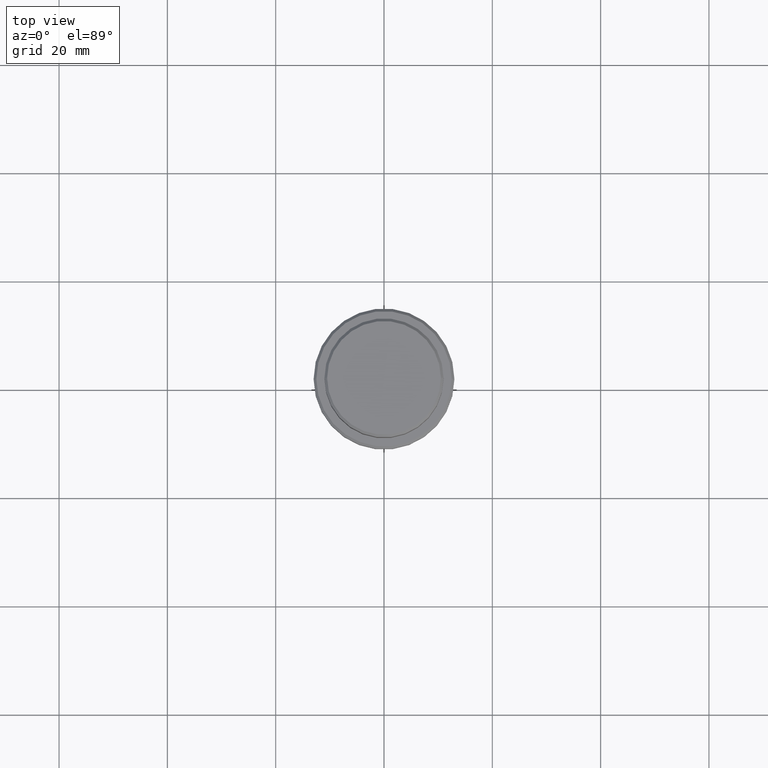
[diagram: clean part render]
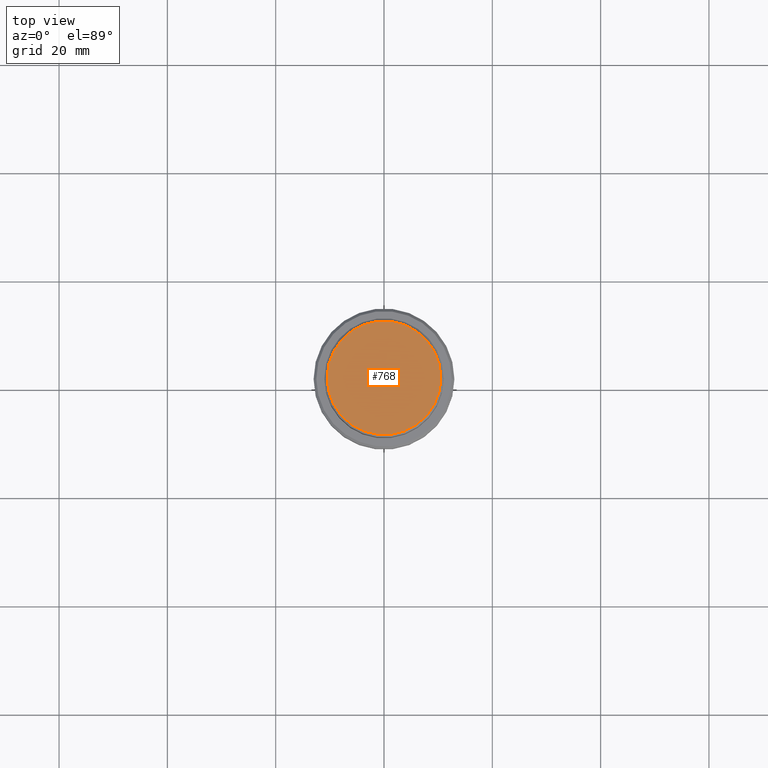
[diagram: same view with one face highlighted and labeled with its STEP entity id]
A machine part, top view. The second image highlights one B-rep face of the part: STEP entity #768.
In plain terms, the highlighted planar face has unit normal (0, -0, 1).
Its self-contained STEP definition (entity closure, byte-faithful):
#30 = DIRECTION ( 'NONE',  ( -0.000000000000000000, -0.000000000000000000, 1.000000000000000000 ) ) ;
#42 = CARTESIAN_POINT ( 'NONE',  ( 10.50000000000000888, 1.316495309083404420E-15, 0.000000000000000000 ) ) ;
#97 = PLANE ( 'NONE',  #967 ) ;
#110 = CARTESIAN_POINT ( 'NONE',  ( -10.50000000000000888, 0.000000000000000000, 0.000000000000000000 ) ) ;
#224 = CARTESIAN_POINT ( 'NONE',  ( 0.000000000000000000, 0.000000000000000000, 0.000000000000000000 ) ) ;
#396 = EDGE_CURVE ( 'NONE', #1232, #1345, #475, .T. ) ;
#412 = DIRECTION ( 'NONE',  ( 0.000000000000000000, -0.000000000000000000, 1.000000000000000000 ) ) ;
#475 = CIRCLE ( 'NONE', #1367, 10.50000000000000888 ) ;
#606 = DIRECTION ( 'NONE',  ( 1.000000000000000000, 0.000000000000000000, 0.000000000000000000 ) ) ;
#687 = AXIS2_PLACEMENT_3D ( 'NONE', #224, #30, #1341 ) ;
#768 = ADVANCED_FACE ( 'NONE', ( #1175 ), #97, .T. ) ;
#785 = EDGE_LOOP ( 'NONE', ( #1323, #1395 ) ) ;
#817 = CARTESIAN_POINT ( 'NONE',  ( 0.000000000000000000, 0.000000000000000000, 0.000000000000000000 ) ) ;
#909 = DIRECTION ( 'NONE',  ( -0.000000000000000000, -0.000000000000000000, 1.000000000000000000 ) ) ;
#967 = AXIS2_PLACEMENT_3D ( 'NONE', #817, #412, #606 ) ;
#1175 = FACE_OUTER_BOUND ( 'NONE', #785, .T. ) ;
#1232 = VERTEX_POINT ( 'NONE', #110 ) ;
#1239 = CARTESIAN_POINT ( 'NONE',  ( 0.000000000000000000, 0.000000000000000000, 0.000000000000000000 ) ) ;
#1288 = EDGE_CURVE ( 'NONE', #1345, #1232, #1310, .T. ) ;
#1310 = CIRCLE ( 'NONE', #687, 10.50000000000000888 ) ;
#1316 = DIRECTION ( 'NONE',  ( 1.000000000000000000, 0.000000000000000000, 0.000000000000000000 ) ) ;
#1323 = ORIENTED_EDGE ( 'NONE', *, *, #396, .T. ) ;
#1341 = DIRECTION ( 'NONE',  ( 1.000000000000000000, 0.000000000000000000, 0.000000000000000000 ) ) ;
#1345 = VERTEX_POINT ( 'NONE', #42 ) ;
#1367 = AXIS2_PLACEMENT_3D ( 'NONE', #1239, #909, #1316 ) ;
#1395 = ORIENTED_EDGE ( 'NONE', *, *, #1288, .T. ) ;